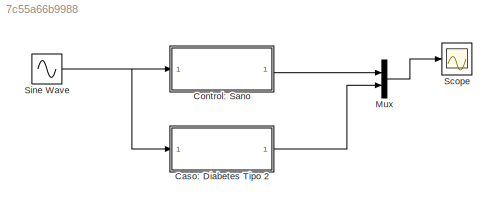
MODEL slx_7c55a66b9988
KIND model
CONFIG AbsTol = auto
CONFIG EnableMultiTasking = off
CONFIG FixedStep = auto
CONFIG MaxStep = auto
CONFIG MinStep = auto
CONFIG RelTol = 1e-3
CONFIG SampleTimeConstraint = Unconstrained
CONFIG SolverName = VariableStepAuto
CONFIG StartTime = 0.0
CONFIG StopTime = 10.0
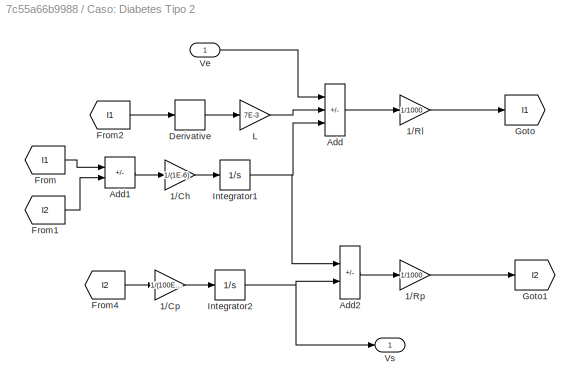
BLOCK [SubSystem] Caso: Diabetes Tipo 2
BLOCK [Gain] Caso: Diabetes Tipo 2/1//Ch
  Gain = 1/(1E-6)
BLOCK [Gain] Caso: Diabetes Tipo 2/1//Cp
  Gain = 1/(100E-6)
BLOCK [Gain] Caso: Diabetes Tipo 2/1//Rl
  Gain = 1/1000
BLOCK [Gain] Caso: Diabetes Tipo 2/1//Rp
  Gain = 1/1000
BLOCK [Sum] Caso: Diabetes Tipo 2/Add
  IconShape = rectangular
  Inputs = +--
BLOCK [Sum] Caso: Diabetes Tipo 2/Add1
  IconShape = rectangular
  Inputs = +-
BLOCK [Sum] Caso: Diabetes Tipo 2/Add2
  IconShape = rectangular
  Inputs = +-
BLOCK [Derivative] Caso: Diabetes Tipo 2/Derivative
BLOCK [From] Caso: Diabetes Tipo 2/From
  GotoTag = I1
BLOCK [From] Caso: Diabetes Tipo 2/From1
  GotoTag = I2
BLOCK [From] Caso: Diabetes Tipo 2/From2
  GotoTag = I1
BLOCK [From] Caso: Diabetes Tipo 2/From4
  GotoTag = I2
BLOCK [Goto] Caso: Diabetes Tipo 2/Goto
  GotoTag = I1
BLOCK [Goto] Caso: Diabetes Tipo 2/Goto1
  GotoTag = I2
BLOCK [Integrator] Caso: Diabetes Tipo 2/Integrator1
BLOCK [Integrator] Caso: Diabetes Tipo 2/Integrator2
BLOCK [Gain] Caso: Diabetes Tipo 2/L
  Gain = 7E-3
BLOCK [Inport] Caso: Diabetes Tipo 2/Ve
BLOCK [Outport] Caso: Diabetes Tipo 2/Vs
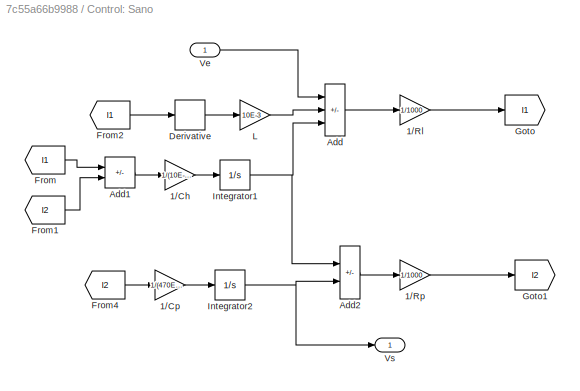
BLOCK [SubSystem] Control: Sano
BLOCK [Gain] Control: Sano/1//Ch
  Gain = 1/(10E-6)
BLOCK [Gain] Control: Sano/1//Cp
  Gain = 1/(470E-6)
BLOCK [Gain] Control: Sano/1//Rl
  Gain = 1/1000
BLOCK [Gain] Control: Sano/1//Rp
  Gain = 1/1000
BLOCK [Sum] Control: Sano/Add
  IconShape = rectangular
  Inputs = +--
BLOCK [Sum] Control: Sano/Add1
  IconShape = rectangular
  Inputs = +-
BLOCK [Sum] Control: Sano/Add2
  IconShape = rectangular
  Inputs = +-
BLOCK [Derivative] Control: Sano/Derivative
BLOCK [From] Control: Sano/From
  GotoTag = I1
BLOCK [From] Control: Sano/From1
  GotoTag = I2
BLOCK [From] Control: Sano/From2
  GotoTag = I1
BLOCK [From] Control: Sano/From4
  GotoTag = I2
BLOCK [Goto] Control: Sano/Goto
  GotoTag = I1
BLOCK [Goto] Control: Sano/Goto1
  GotoTag = I2
BLOCK [Integrator] Control: Sano/Integrator1
BLOCK [Integrator] Control: Sano/Integrator2
BLOCK [Gain] Control: Sano/L
  Gain = 10E-3
BLOCK [Inport] Control: Sano/Ve
BLOCK [Outport] Control: Sano/Vs
BLOCK [Mux] Mux
  DisplayOption = bar
  Inputs = 2
BLOCK [Scope] Scope
  Floating = off
  NumInputPorts = 1
  ScopeSpecificationString = Simulink.scopes.TimeScopeBlockCfg('CurrentConfiguration', extmgr.ConfigurationSet(extmgr.Configuration('Core','General UI',true),extmgr.Configuration('Core','Source UI',true),extmgr.Configuration('Sources','WiredSimulink',true),extmgr.Configuration('Visuals','Time Domain',true,'SerializedDisplays',{struct('MinYLimReal','-1.19227','MaxYLimReal','1.19302','YLabelReal','','MinYLimMag','0.00000','MaxY...<+1357ch>
BLOCK [Sin] Sine Wave
  Frequency = 1.5708
  SampleTime = 0.001
LINE Caso: Diabetes Tipo 2/1//Ch:1 -> Caso: Diabetes Tipo 2/Integrator1:1
LINE Caso: Diabetes Tipo 2/1//Cp:1 -> Caso: Diabetes Tipo 2/Integrator2:1
LINE Caso: Diabetes Tipo 2/1//Rl:1 -> Caso: Diabetes Tipo 2/Goto:1
LINE Caso: Diabetes Tipo 2/1//Rp:1 -> Caso: Diabetes Tipo 2/Goto1:1
LINE Caso: Diabetes Tipo 2/Add1:1 -> Caso: Diabetes Tipo 2/1//Ch:1
LINE Caso: Diabetes Tipo 2/Add2:1 -> Caso: Diabetes Tipo 2/1//Rp:1
LINE Caso: Diabetes Tipo 2/Add:1 -> Caso: Diabetes Tipo 2/1//Rl:1
LINE Caso: Diabetes Tipo 2/Derivative:1 -> Caso: Diabetes Tipo 2/L:1
LINE Caso: Diabetes Tipo 2/From1:1 -> Caso: Diabetes Tipo 2/Add1:2
LINE Caso: Diabetes Tipo 2/From2:1 -> Caso: Diabetes Tipo 2/Derivative:1
LINE Caso: Diabetes Tipo 2/From4:1 -> Caso: Diabetes Tipo 2/1//Cp:1
LINE Caso: Diabetes Tipo 2/From:1 -> Caso: Diabetes Tipo 2/Add1:1
NET Caso: Diabetes Tipo 2/Integrator1:1 -> Caso: Diabetes Tipo 2/Add2:1, Caso: Diabetes Tipo 2/Add:3
NET Caso: Diabetes Tipo 2/Integrator2:1 -> Caso: Diabetes Tipo 2/Add2:2, Caso: Diabetes Tipo 2/Vs:1
LINE Caso: Diabetes Tipo 2/L:1 -> Caso: Diabetes Tipo 2/Add:2
LINE Caso: Diabetes Tipo 2/Ve:1 -> Caso: Diabetes Tipo 2/Add:1
LINE Caso: Diabetes Tipo 2:1 -> Mux:2
LINE Control: Sano/1//Ch:1 -> Control: Sano/Integrator1:1
LINE Control: Sano/1//Cp:1 -> Control: Sano/Integrator2:1
LINE Control: Sano/1//Rl:1 -> Control: Sano/Goto:1
LINE Control: Sano/1//Rp:1 -> Control: Sano/Goto1:1
LINE Control: Sano/Add1:1 -> Control: Sano/1//Ch:1
LINE Control: Sano/Add2:1 -> Control: Sano/1//Rp:1
LINE Control: Sano/Add:1 -> Control: Sano/1//Rl:1
LINE Control: Sano/Derivative:1 -> Control: Sano/L:1
LINE Control: Sano/From1:1 -> Control: Sano/Add1:2
LINE Control: Sano/From2:1 -> Control: Sano/Derivative:1
LINE Control: Sano/From4:1 -> Control: Sano/1//Cp:1
LINE Control: Sano/From:1 -> Control: Sano/Add1:1
NET Control: Sano/Integrator1:1 -> Control: Sano/Add2:1, Control: Sano/Add:3
NET Control: Sano/Integrator2:1 -> Control: Sano/Add2:2, Control: Sano/Vs:1
LINE Control: Sano/L:1 -> Control: Sano/Add:2
LINE Control: Sano/Ve:1 -> Control: Sano/Add:1
LINE Control: Sano:1 -> Mux:1
LINE Mux:1 -> Scope:1
NET Sine Wave:1 -> Caso: Diabetes Tipo 2:1, Control: Sano:1
note: NET lines group one-source signal fan-out (src -> all destinations, sorted); 1:1 wires keep LINE
